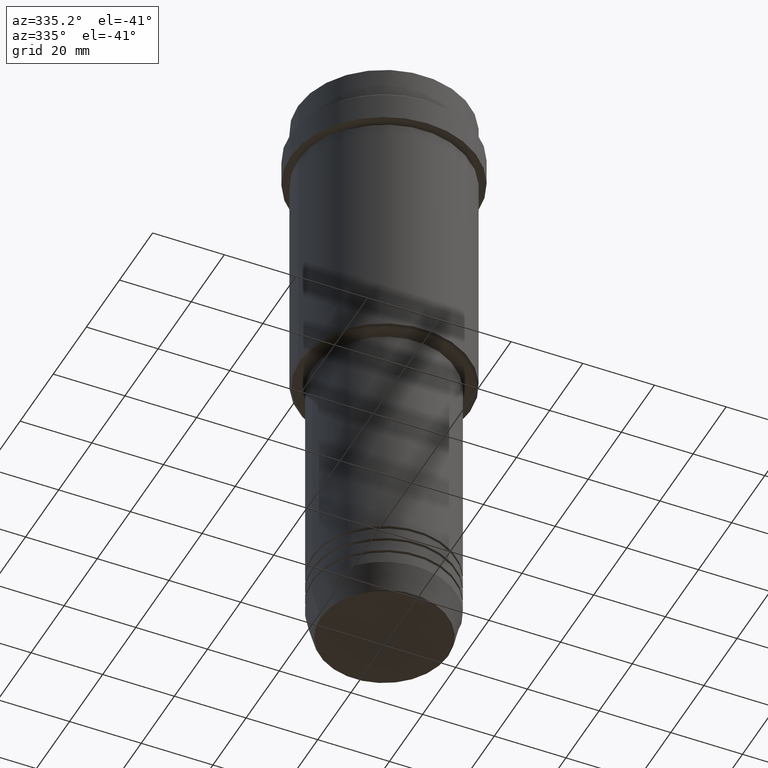
[diagram: clean part render]
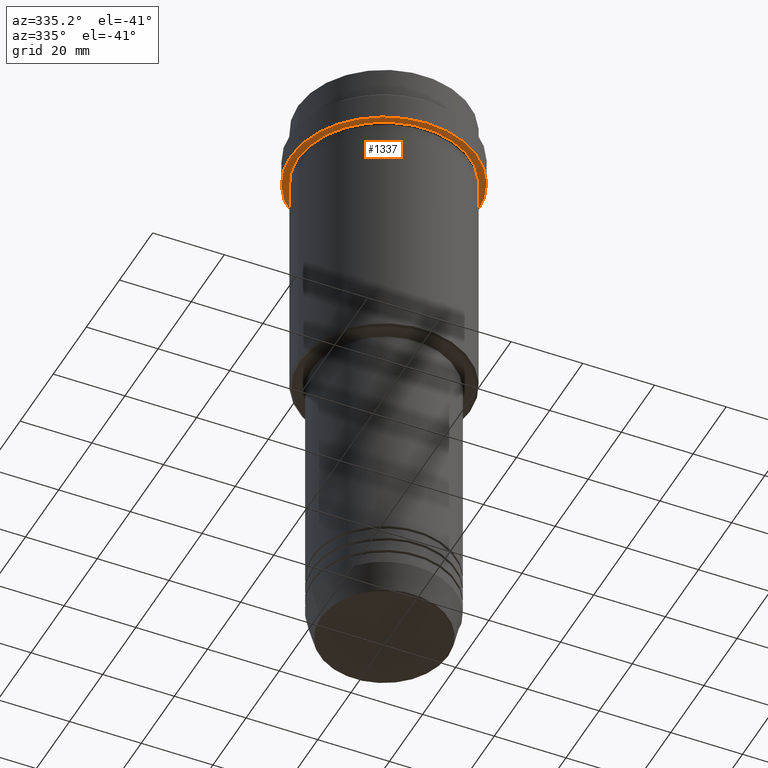
[diagram: same view with one face highlighted and labeled with its STEP entity id]
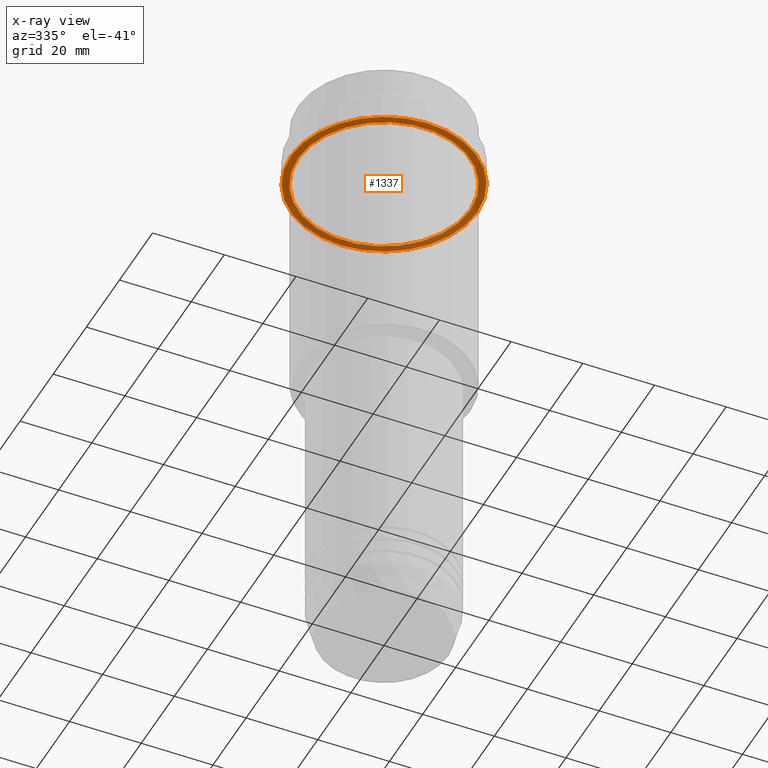
[diagram: x-ray of the same camera — body ghosted, the highlighted face saturated]
A machine part, auxiliary view. The second image highlights one B-rep face of the part: STEP entity #1337.
The next image is the same camera in x-ray: the body ghosted, the highlighted face saturated — about 39% of this face is hidden behind the body in this view.
In plain terms, the highlighted planar face has unit normal (0, 0, -1).
Its self-contained STEP definition (entity closure, byte-faithful):
#36 = FACE_BOUND ( 'NONE', #629, .T. ) ;
#121 = VERTEX_POINT ( 'NONE', #692 ) ;
#141 = EDGE_CURVE ( 'NONE', #442, #522, #509, .T. ) ;
#236 = ORIENTED_EDGE ( 'NONE', *, *, #271, .F. ) ;
#264 = AXIS2_PLACEMENT_3D ( 'NONE', #1377, #296, #1066 ) ;
#271 = EDGE_CURVE ( 'NONE', #522, #442, #1082, .T. ) ;
#296 = DIRECTION ( 'NONE',  ( -0.000000000000000000, -0.000000000000000000, 1.000000000000000000 ) ) ;
#311 = DIRECTION ( 'NONE',  ( -1.000000000000000000, 0.000000000000000000, -0.000000000000000000 ) ) ;
#319 = AXIS2_PLACEMENT_3D ( 'NONE', #1116, #371, #1411 ) ;
#371 = DIRECTION ( 'NONE',  ( -0.000000000000000000, -0.000000000000000000, 1.000000000000000000 ) ) ;
#398 = DIRECTION ( 'NONE',  ( 1.000000000000000000, 0.000000000000000000, 0.000000000000000000 ) ) ;
#404 = CIRCLE ( 'NONE', #264, 23.99999999999997158 ) ;
#410 = CARTESIAN_POINT ( 'NONE',  ( 0.000000000000000000, 0.000000000000000000, -18.00000000000000355 ) ) ;
#442 = VERTEX_POINT ( 'NONE', #801 ) ;
#478 = FACE_OUTER_BOUND ( 'NONE', #591, .T. ) ;
#491 = AXIS2_PLACEMENT_3D ( 'NONE', #410, #1142, #398 ) ;
#509 = CIRCLE ( 'NONE', #491, 25.99999999999997868 ) ;
#516 = AXIS2_PLACEMENT_3D ( 'NONE', #958, #734, #311 ) ;
#522 = VERTEX_POINT ( 'NONE', #932 ) ;
#591 = EDGE_LOOP ( 'NONE', ( #688, #236 ) ) ;
#629 = EDGE_LOOP ( 'NONE', ( #1118, #1010 ) ) ;
#633 = PLANE ( 'NONE',  #516 ) ;
#688 = ORIENTED_EDGE ( 'NONE', *, *, #141, .F. ) ;
#692 = CARTESIAN_POINT ( 'NONE',  ( -23.99999999999997158, 0.000000000000000000, -18.00000000000000355 ) ) ;
#693 = AXIS2_PLACEMENT_3D ( 'NONE', #849, #1250, #769 ) ;
#734 = DIRECTION ( 'NONE',  ( 0.000000000000000000, 0.000000000000000000, -1.000000000000000000 ) ) ;
#769 = DIRECTION ( 'NONE',  ( 1.000000000000000000, 0.000000000000000000, 0.000000000000000000 ) ) ;
#785 = EDGE_CURVE ( 'NONE', #1389, #121, #404, .T. ) ;
#801 = CARTESIAN_POINT ( 'NONE',  ( 25.99999999999997868, 0.000000000000000000, -18.00000000000000355 ) ) ;
#849 = CARTESIAN_POINT ( 'NONE',  ( 0.000000000000000000, 0.000000000000000000, -18.00000000000000355 ) ) ;
#932 = CARTESIAN_POINT ( 'NONE',  ( -25.99999999999997868, 3.184081677783115430E-15, -18.00000000000000355 ) ) ;
#958 = CARTESIAN_POINT ( 'NONE',  ( 0.000000000000000000, 25.99999999999997868, -18.00000000000000355 ) ) ;
#1010 = ORIENTED_EDGE ( 'NONE', *, *, #785, .T. ) ;
#1066 = DIRECTION ( 'NONE',  ( -1.000000000000000000, 0.000000000000000000, 0.000000000000000000 ) ) ;
#1082 = CIRCLE ( 'NONE', #693, 25.99999999999997868 ) ;
#1087 = CIRCLE ( 'NONE', #319, 23.99999999999997158 ) ;
#1116 = CARTESIAN_POINT ( 'NONE',  ( 0.000000000000000000, 0.000000000000000000, -18.00000000000000355 ) ) ;
#1118 = ORIENTED_EDGE ( 'NONE', *, *, #1193, .T. ) ;
#1142 = DIRECTION ( 'NONE',  ( -0.000000000000000000, -0.000000000000000000, 1.000000000000000000 ) ) ;
#1180 = CARTESIAN_POINT ( 'NONE',  ( 23.99999999999997158, 2.939152317953644345E-15, -18.00000000000000355 ) ) ;
#1193 = EDGE_CURVE ( 'NONE', #121, #1389, #1087, .T. ) ;
#1250 = DIRECTION ( 'NONE',  ( -0.000000000000000000, -0.000000000000000000, 1.000000000000000000 ) ) ;
#1337 = ADVANCED_FACE ( 'NONE', ( #36, #478 ), #633, .T. ) ;
#1377 = CARTESIAN_POINT ( 'NONE',  ( 0.000000000000000000, 0.000000000000000000, -18.00000000000000355 ) ) ;
#1389 = VERTEX_POINT ( 'NONE', #1180 ) ;
#1411 = DIRECTION ( 'NONE',  ( -1.000000000000000000, 0.000000000000000000, 0.000000000000000000 ) ) ;